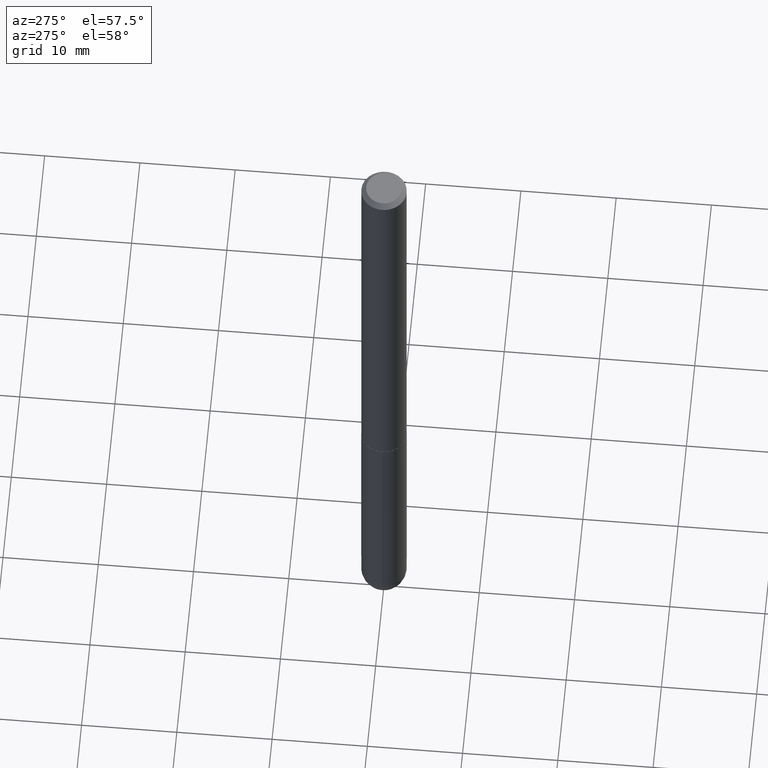
[diagram: clean part render]
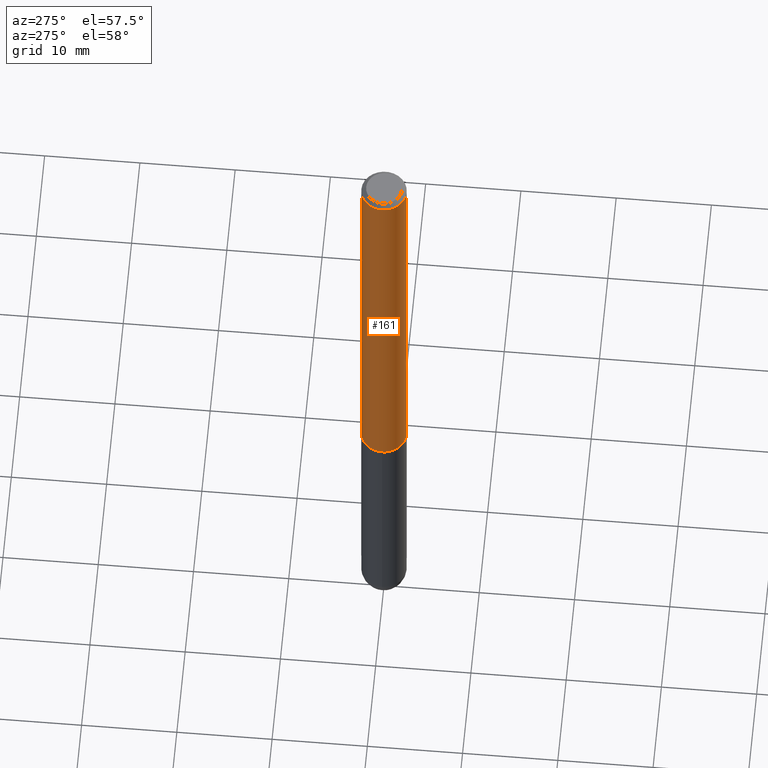
[diagram: same view with one face highlighted and labeled with its STEP entity id]
A machine part, auxiliary view. The second image highlights one B-rep face of the part: STEP entity #161.
In plain terms, the highlighted cylindrical surface (edge-blend (fillet) strip) has radius 2.3813 mm, axis along (-0, 0, 1).
Its self-contained STEP definition (entity closure, byte-faithful):
#6 = VECTOR ( 'NONE', #40, 39.37007874015748143 ) ;
#8 = CARTESIAN_POINT ( 'NONE',  ( 4.887778694849685267E-31, -6.987486427370243399E-17, -0.02000000000000007327 ) ) ;
#9 = CARTESIAN_POINT ( 'NONE',  ( 6.661338147750947131E-16, 0.09375000000000012490, -3.275384262829794452E-16 ) ) ;
#10 = DIRECTION ( 'NONE',  ( -2.443889347424833507E-29, 3.493743213685109349E-15, 1.000000000000000000 ) ) ;
#16 = CARTESIAN_POINT ( 'NONE',  ( 4.579848637074137935E-29, -6.547274782445895103E-15, -1.874000000000000110 ) ) ;
#26 = EDGE_LOOP ( 'NONE', ( #307, #191, #289, #245 ) ) ;
#29 = AXIS2_PLACEMENT_3D ( 'NONE', #8, #262, #213 ) ;
#38 = CARTESIAN_POINT ( 'NONE',  ( 6.546527510330878985E-16, 0.09374999999999991673, -0.02000000000000040287 ) ) ;
#40 = DIRECTION ( 'NONE',  ( -2.443889347424833227E-29, 3.493743213685109349E-15, 1.000000000000000000 ) ) ;
#108 = LINE ( 'NONE', #9, #352 ) ;
#131 = CARTESIAN_POINT ( 'NONE',  ( -6.546527510330883916E-16, -0.09375000000000012490, 3.275384262829794452E-16 ) ) ;
#133 = DIRECTION ( 'NONE',  ( -6.982962677686266711E-15, -1.000000000000000000, 3.493743213685109349E-15 ) ) ;
#137 = DIRECTION ( 'NONE',  ( -6.982962677686265133E-15, -1.000000000000000000, 2.913971193241872483E-15 ) ) ;
#147 = EDGE_CURVE ( 'NONE', #179, #243, #108, .T. ) ;
#161 = ADVANCED_FACE ( 'NONE', ( #196 ), #366, .T. ) ;
#165 = DIRECTION ( 'NONE',  ( -2.443889347424833507E-29, 3.493743213685109349E-15, 1.000000000000000000 ) ) ;
#174 = VERTEX_POINT ( 'NONE', #394 ) ;
#175 = EDGE_CURVE ( 'NONE', #174, #239, #238, .T. ) ;
#176 = CIRCLE ( 'NONE', #410, 0.09375000000000026368 ) ;
#179 = VERTEX_POINT ( 'NONE', #233 ) ;
#191 = ORIENTED_EDGE ( 'NONE', *, *, #199, .T. ) ;
#196 = FACE_OUTER_BOUND ( 'NONE', #26, .T. ) ;
#199 = EDGE_CURVE ( 'NONE', #179, #174, #176, .T. ) ;
#213 = DIRECTION ( 'NONE',  ( -6.982962677686266711E-15, -1.000000000000000000, 3.505871591869138487E-15 ) ) ;
#233 = CARTESIAN_POINT ( 'NONE',  ( 6.661338147751183789E-16, 0.09374999999999372724, -1.874000000000000332 ) ) ;
#238 = LINE ( 'NONE', #131, #6 ) ;
#239 = VERTEX_POINT ( 'NONE', #325 ) ;
#243 = VERTEX_POINT ( 'NONE', #38 ) ;
#245 = ORIENTED_EDGE ( 'NONE', *, *, #257, .F. ) ;
#257 = EDGE_CURVE ( 'NONE', #243, #239, #375, .T. ) ;
#262 = DIRECTION ( 'NONE',  ( -2.443889347424833507E-29, 3.493743213685109349E-15, 1.000000000000000000 ) ) ;
#289 = ORIENTED_EDGE ( 'NONE', *, *, #175, .T. ) ;
#302 = DIRECTION ( 'NONE',  ( -2.443889347424833227E-29, 3.493743213685109349E-15, 1.000000000000000000 ) ) ;
#307 = ORIENTED_EDGE ( 'NONE', *, *, #147, .F. ) ;
#325 = CARTESIAN_POINT ( 'NONE',  ( -6.431716872910804923E-16, -0.09375000000000005551, -0.01999999999999974368 ) ) ;
#328 = CARTESIAN_POINT ( 'NONE',  ( 0.000000000000000000, 0.000000000000000000, 0.000000000000000000 ) ) ;
#352 = VECTOR ( 'NONE', #302, 39.37007874015748143 ) ;
#366 = CYLINDRICAL_SURFACE ( 'NONE', #383, 0.09375000000000012490 ) ;
#375 = CIRCLE ( 'NONE', #29, 0.09374999999999998612 ) ;
#383 = AXIS2_PLACEMENT_3D ( 'NONE', #328, #10, #133 ) ;
#394 = CARTESIAN_POINT ( 'NONE',  ( -6.546527510330433279E-16, -0.09375000000000680012, -1.873999999999999666 ) ) ;
#410 = AXIS2_PLACEMENT_3D ( 'NONE', #16, #165, #137 ) ;